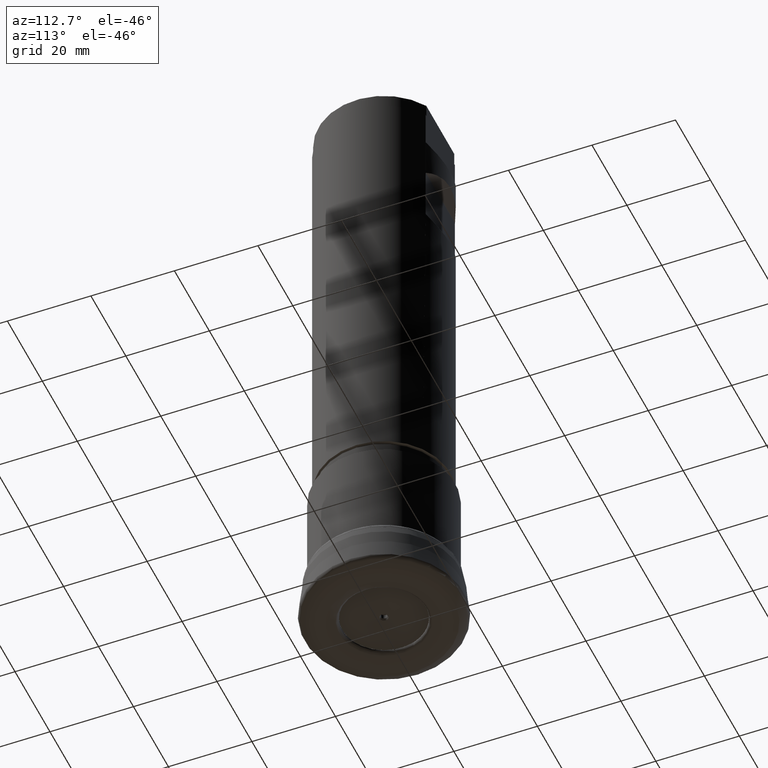
[diagram: clean part render]
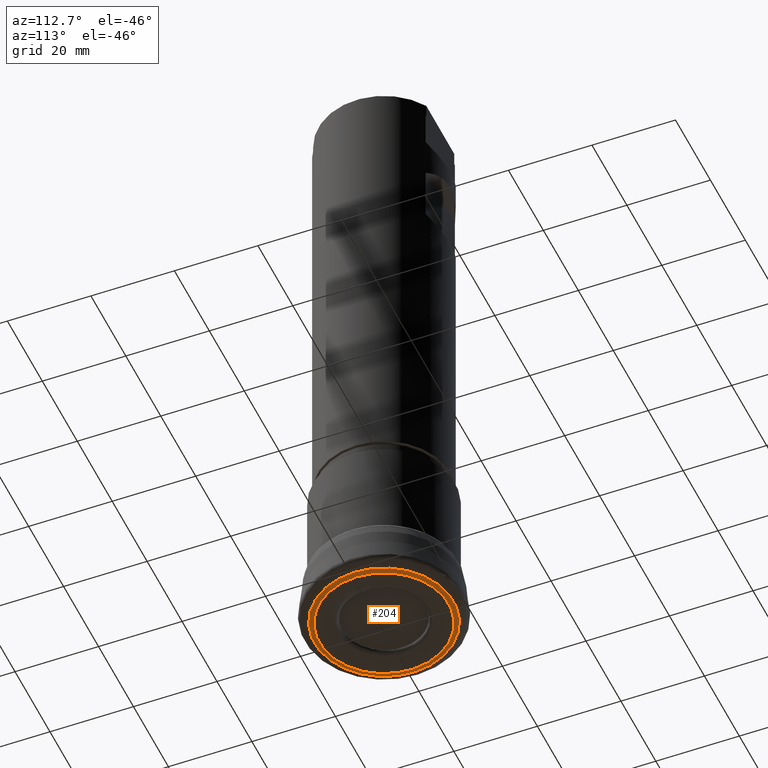
[diagram: same view with one face highlighted and labeled with its STEP entity id]
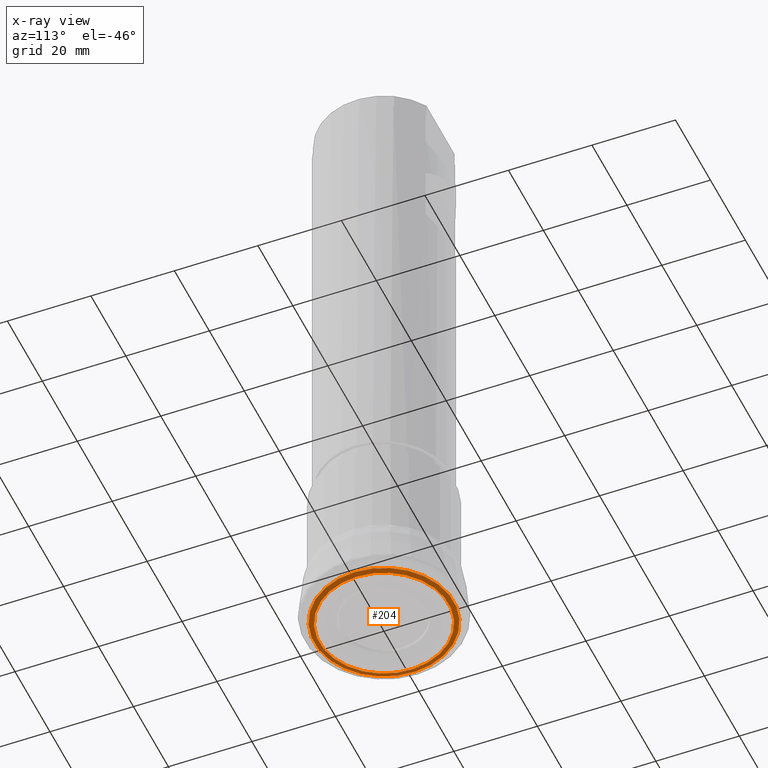
[diagram: x-ray of the same camera — body ghosted, the highlighted face saturated]
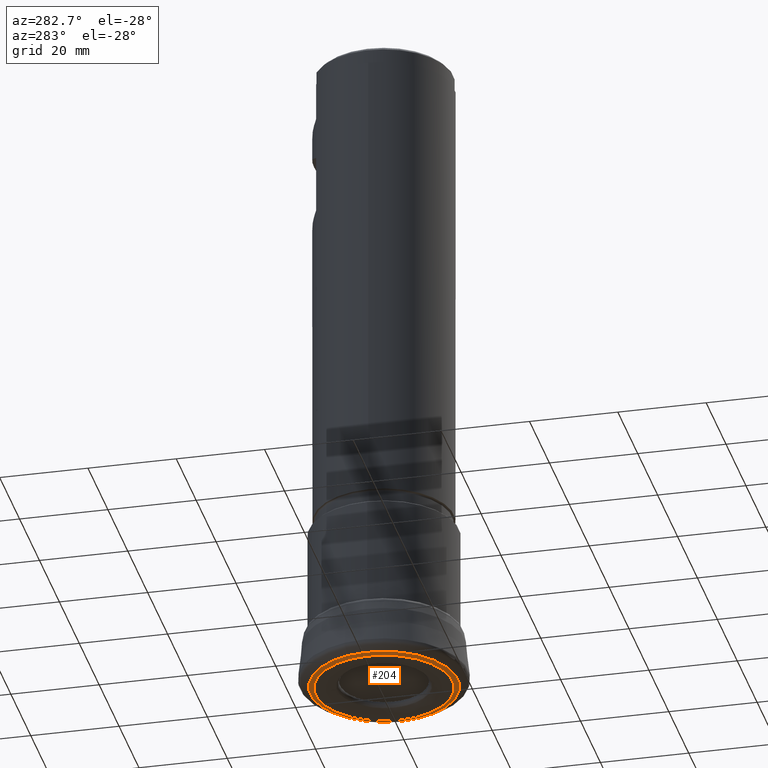
[diagram: same view with one face highlighted and labeled with its STEP entity id]
A machine part, auxiliary view. The second image highlights one B-rep face of the part: STEP entity #204.
The next image is the same camera in x-ray: the body ghosted, the highlighted face saturated — about 0% of this face is hidden behind the body in this view.
A second angle (auxiliary view) of the same face is appended — the face is thin or edge-on in the first view.
In plain terms, the highlighted face is a SurfaceOfRevolution surface.
Its self-contained STEP definition (entity closure, byte-faithful):
#204=ADVANCED_FACE('',(#359,#360),#261,.F.);
#261=SURFACE_OF_REVOLUTION('',#315,#288);
#288=AXIS1_PLACEMENT('',#1251,#977);
#315=B_SPLINE_CURVE_WITH_KNOTS('',3,(#1247,#1248,#1249,#1250),
 .UNSPECIFIED.,.F.,.F.,(4,4),(0.,1.),.UNSPECIFIED.);
#359=FACE_BOUND('',#448,.T.);
#360=FACE_BOUND('',#449,.T.);
#448=EDGE_LOOP('',(#549));
#449=EDGE_LOOP('',(#550));
#549=ORIENTED_EDGE('',*,*,#750,.T.);
#550=ORIENTED_EDGE('',*,*,#751,.F.);
#686=VERTEX_POINT('',#1239);
#687=VERTEX_POINT('',#1246);
#750=EDGE_CURVE('',#686,#686,#823,.T.);
#751=EDGE_CURVE('',#687,#687,#824,.T.);
#823=CIRCLE('',#868,15.504899302545);
#824=CIRCLE('',#869,16.6803432215942);
#868=AXIS2_PLACEMENT_3D('',#1238,#972,#973);
#869=AXIS2_PLACEMENT_3D('',#1245,#975,#976);
#972=DIRECTION('',(0.,0.,1.));
#973=DIRECTION('',(1.,0.,0.));
#975=DIRECTION('',(0.,0.,1.));
#976=DIRECTION('',(1.,0.,0.));
#977=DIRECTION('',(0.,0.,1.));
#1238=CARTESIAN_POINT('',(0.,0.,0.11279673645662));
#1239=CARTESIAN_POINT('',(15.504899302545,0.,0.11279673645662));
#1245=CARTESIAN_POINT('',(0.,0.,0.429783437361479));
#1246=CARTESIAN_POINT('',(16.6803432215942,0.,0.429783437361479));
#1247=CARTESIAN_POINT('',(-16.0658262831785,4.48587514644338,0.429783437367551));
#1248=CARTESIAN_POINT('',(-15.6842555902278,4.43229592714514,0.29271521633953));
#1249=CARTESIAN_POINT('',(-15.2929874203598,4.37030365577865,0.186808990150235));
#1250=CARTESIAN_POINT('',(-14.8967148858299,4.3,0.112788161761431));
#1251=CARTESIAN_POINT('',(0.,0.,0.));